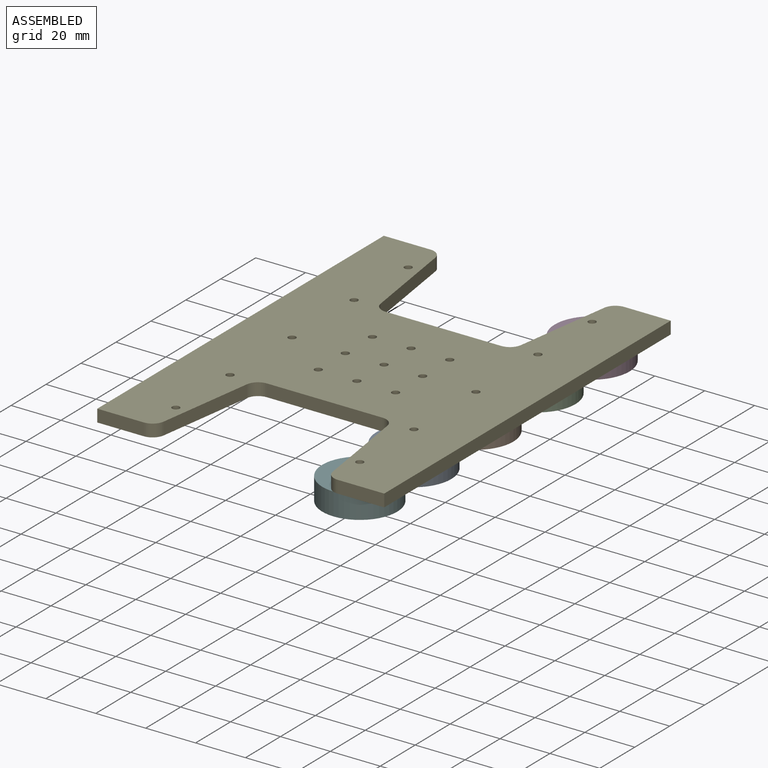
[diagram: assembled view]
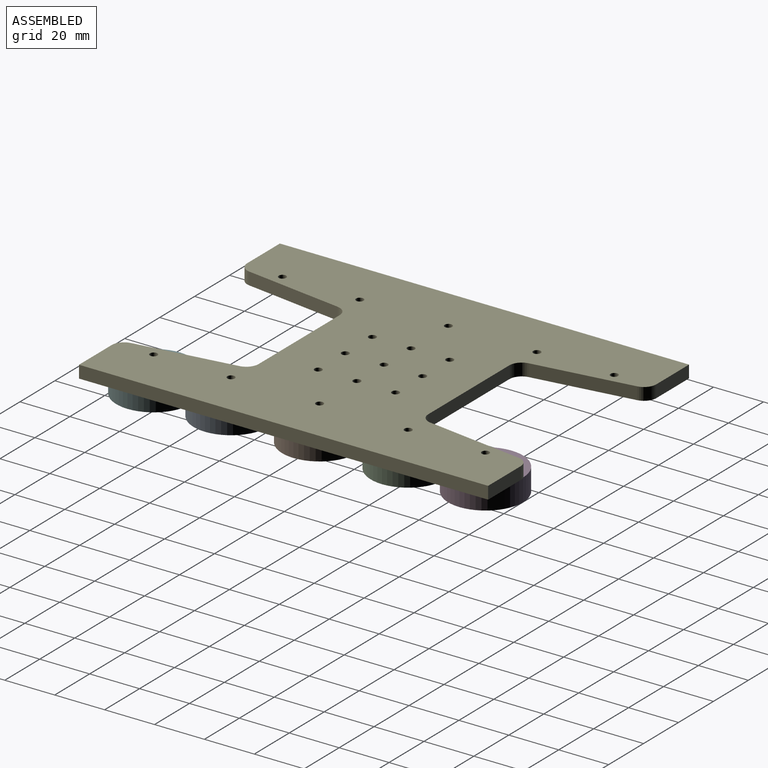
[diagram: assembled view, second angle]
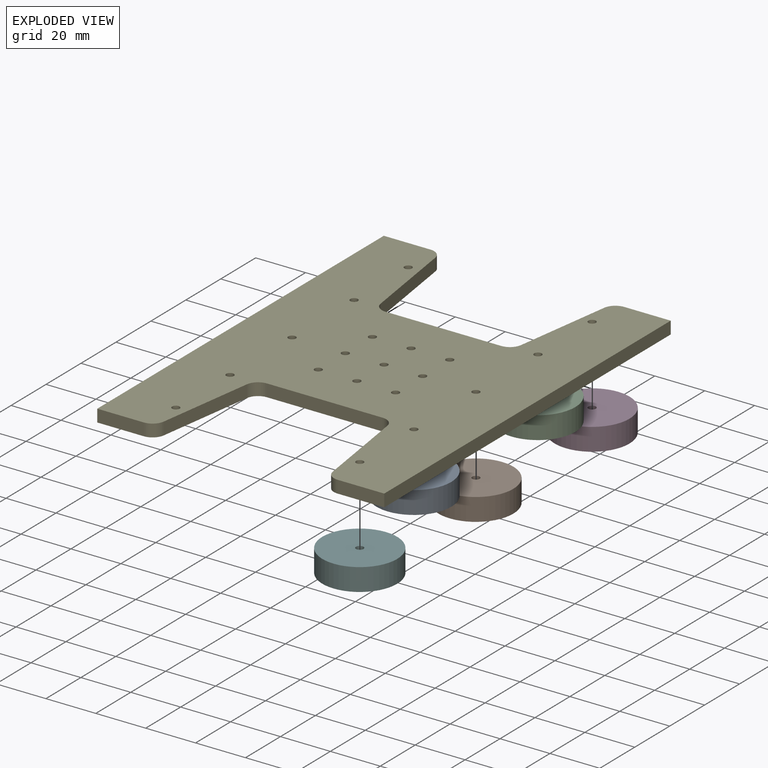
[diagram: exploded view]
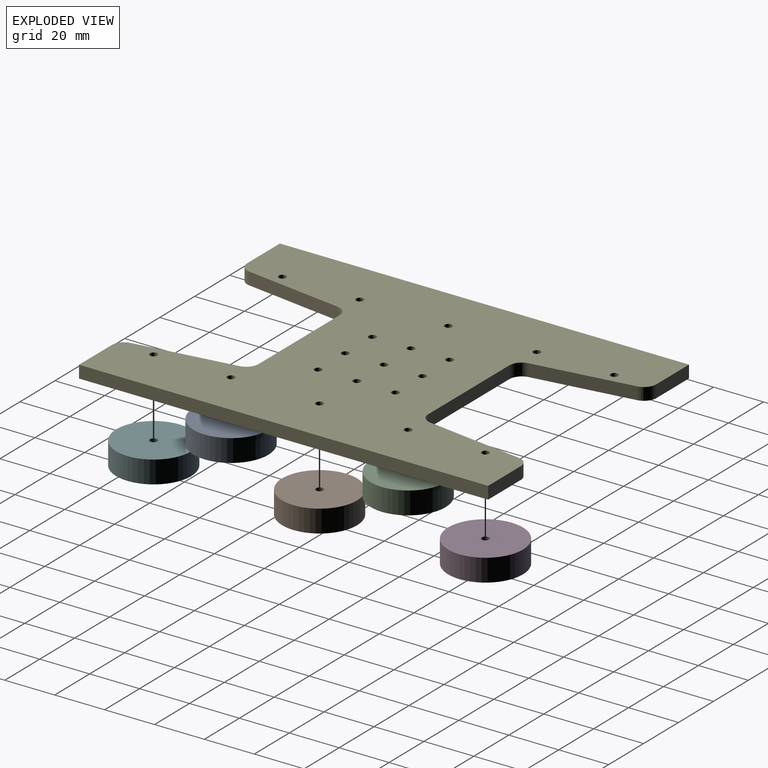
[diagram: exploded view, second angle]
ASSEMBLY  parts=6 mates=5
PART A: 4 faces, bbox 30x30x9 mm
  f0: cylinder r=15mm len=30mm, axis (0,0,1), area 848.2mm2, adj f2,f3
  f1: cylinder r=1.5mm len=9mm, axis (0,0,1), area 84.8mm2, adj f2,f3
  f2: plane 30x30mm, normal (0,0,-1), area 699.8mm2, adj f0,f1
  f3: plane 30x30mm, normal (0,0,1), area 699.8mm2, adj f0,f1
PART B: same geometry as A
PART C: same geometry as A
PART D: same geometry as A
PART E: 41 faces, bbox 115x164x5 mm
  f0: plane 39.44x5.75mm, normal (0.99,0.14,0), area 199.3mm2, adj f1,f35,f36,f40
  f1: cylinder r=5mm len=5mm, axis (0,0,1), area 35.6mm2, adj f0,f2,f35,f36
  f2: plane 46.35x5mm, normal (0,1,0), area 231.8mm2, adj f1,f3,f35,f36
  f3: cylinder r=5mm len=5mm, axis (0,0,1), area 35.6mm2, adj f2,f4,f35,f36
  f4: plane 39.44x5.75mm, normal (-0.99,0.14,0), area 199.3mm2, adj f3,f35,f36,f37
  f5: plane 18.68x5mm, normal (0,1,0), area 93.4mm2, adj f6,f35,f36,f37
  f6: plane 164x5mm, normal (1,0,0), area 820mm2, adj f5,f7,f35,f36
  f7: plane 18.68x5mm, normal (0,-1,0), area 93.4mm2, adj f6,f35,f36,f38
  f8: plane 39.44x5.75mm, normal (-0.99,-0.14,0), area 199.3mm2, adj f9,f35,f36,f38
  f9: cylinder r=5mm len=5mm, axis (0,0,1), area 35.6mm2, adj f8,f10,f35,f36
  f10: plane 46.35x5mm, normal (0,-1,0), area 231.8mm2, adj f9,f11,f35,f36
  f11: cylinder r=5mm len=5mm, axis (0,0,1), area 35.6mm2, adj f10,f12,f35,f36
  f12: plane 39.44x5.75mm, normal (0.99,-0.14,0), area 199.3mm2, adj f11,f35,f36,f39
  f13: plane 18.68x5mm, normal (0,-1,0), area 93.4mm2, adj f14,f35,f36,f39
  f14: plane 164x5mm, normal (-1,0,0), area 820mm2, adj f13,f29,f35,f36
  f15: cylinder r=1.5mm len=5mm, axis (0,0,1), area 47.1mm2, adj f35,f36
  f16: cylinder r=1.5mm len=5mm, axis (0,0,1), area 47.1mm2, adj f35,f36
  f17: cylinder r=1.5mm len=5mm, axis (0,0,1), area 47.1mm2, adj f35,f36
  f18: cylinder r=1.5mm len=5mm, axis (0,0,1), area 47.1mm2, adj f35,f36
  f19: cylinder r=1.5mm len=5mm, axis (0,0,1), area 47.1mm2, adj f35,f36
  f20: cylinder r=1.5mm len=5mm, axis (0,0,1), area 47.1mm2, adj f35,f36
  f21: cylinder r=1.5mm len=5mm, axis (0,0,1), area 47.1mm2, adj f35,f36
  f22: cylinder r=1.5mm len=5mm, axis (0,0,1), area 47.1mm2, adj f35,f36
  f23: cylinder r=1.5mm len=5mm, axis (0,0,1), area 47.1mm2, adj f35,f36
  f24: cylinder r=1.5mm len=5mm, axis (0,0,1), area 47.1mm2, adj f35,f36
  f25: cylinder r=1.5mm len=5mm, axis (0,0,1), area 47.1mm2, adj f35,f36
  f26: cylinder r=1.5mm len=5mm, axis (0,0,1), area 47.1mm2, adj f35,f36
  f27: cylinder r=1.5mm len=5mm, axis (0,0,1), area 47.1mm2, adj f35,f36
  f28: cylinder r=1.5mm len=5mm, axis (0,0,1), area 47.1mm2, adj f35,f36
  f29: plane 18.68x5mm, normal (0,1,0), area 93.4mm2, adj f14,f35,f36,f40
  f30: cylinder r=1.5mm len=5mm, axis (0,0,1), area 47.1mm2, adj f35,f36
  f31: cylinder r=1.5mm len=5mm, axis (0,0,1), area 47.1mm2, adj f35,f36
  f32: cylinder r=1.5mm len=5mm, axis (0,0,1), area 47.1mm2, adj f35,f36
  f33: cylinder r=1.5mm len=5mm, axis (0,0,1), area 47.1mm2, adj f35,f36
  f34: cylinder r=1.5mm len=5mm, axis (0,0,1), area 47.1mm2, adj f35,f36
  f35: plane 164x115mm, normal (0,0,-1), area 12773.7mm2, adj f0,f1,f2,f3,f4,f5,f6,f7
  f36: plane 164x115mm, normal (0,0,1), area 12773.7mm2, adj f0,f1,f2,f3,f4,f5,f6,f7
  f37: cylinder r=5mm len=5mm, axis (0,0,1), area 35.6mm2, adj f4,f5,f35,f36
  f38: cylinder r=5mm len=5mm, axis (0,0,1), area 35.6mm2, adj f7,f8,f35,f36
  f39: cylinder r=5mm len=5mm, axis (0,0,1), area 35.6mm2, adj f12,f13,f35,f36
  f40: cylinder r=5mm len=5mm, axis (0,0,1), area 35.6mm2, adj f0,f29,f35,f36
PART F: same geometry as A
PLACE A t=(-57.64,-7.39,2.34)mm
PLACE B t=(-57.64,28.11,2.34)mm
PLACE C t=(-57.64,63.61,2.34)mm
PLACE D t=(-57.64,94.61,2.34)mm
PLACE E t=(-57.64,-38.39,2.34)mm fixed
PLACE F t=(-57.64,-38.39,2.34)mm
MATE fastened E.f15 <-> B.f0  axis (0,0,-1) through (-20.79,-38.39,-10.16)mm
MATE fastened E.f31 <-> A.f0  axis (0,0,-1) through (-20.79,-73.89,-10.16)mm
MATE fastened F.f0 <-> E.f32  axis (0,0,1) through (-20.79,-104.89,-10.16)mm
MATE fastened E.f30 <-> D.f0  axis (0,0,-1) through (-20.79,28.11,-10.16)mm
MATE fastened E.f16 <-> C.f0  axis (0,0,-1) through (-20.79,-2.89,-10.16)mm
